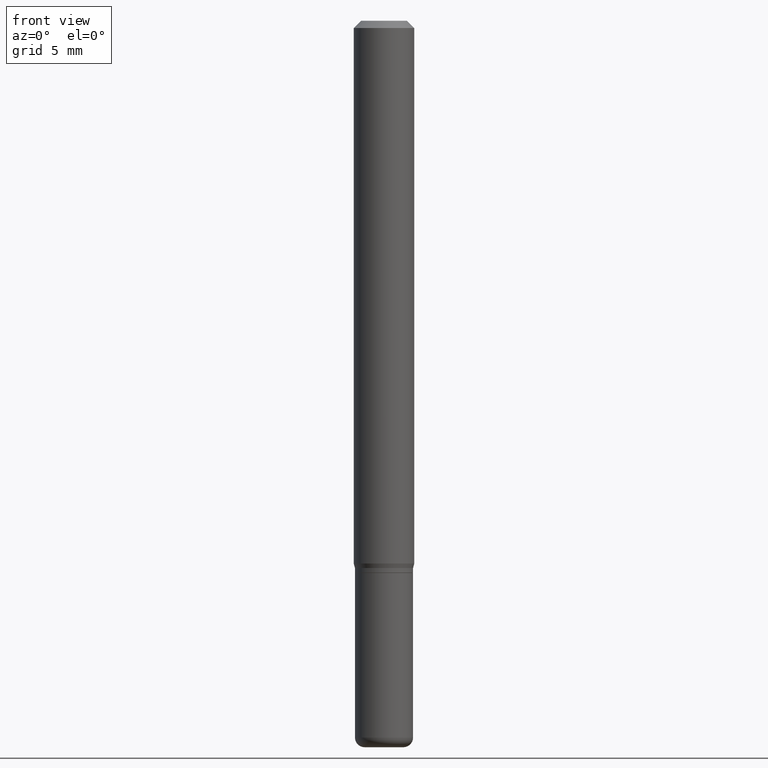
[diagram: clean part render]
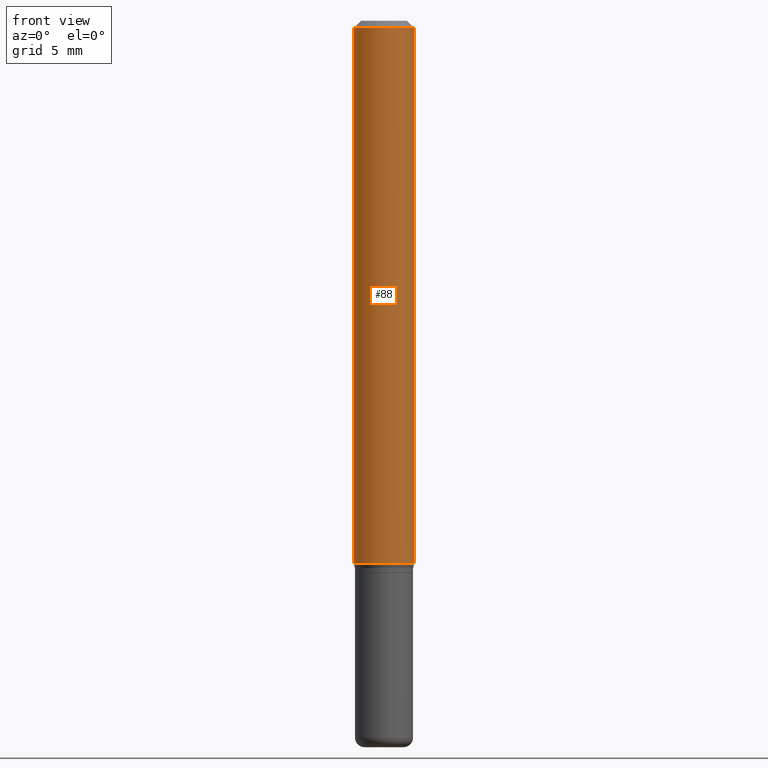
[diagram: same view with one face highlighted and labeled with its STEP entity id]
A machine part, front view. The second image highlights one B-rep face of the part: STEP entity #88.
In plain terms, the highlighted cylindrical surface (edge-blend (fillet) strip) has radius 1.5875 mm, axis along (-0, 0, 1).
Its self-contained STEP definition (entity closure, byte-faithful):
#5 = ORIENTED_EDGE ( 'NONE', *, *, #423, .F. ) ;
#6 = CIRCLE ( 'NONE', #293, 0.06250000000000000000 ) ;
#11 = DIRECTION ( 'NONE',  ( 1.000000000000000000, -6.982962677686266711E-15, 4.876176775795935793E-29 ) ) ;
#18 = EDGE_CURVE ( 'NONE', #112, #510, #447, .T. ) ;
#22 = DIRECTION ( 'NONE',  ( -2.445468806185136597E-29, 3.491481338843145583E-15, 1.000000000000000000 ) ) ;
#30 = ORIENTED_EDGE ( 'NONE', *, *, #166, .F. ) ;
#34 = VERTEX_POINT ( 'NONE', #490 ) ;
#40 = AXIS2_PLACEMENT_3D ( 'NONE', #128, #248, #11 ) ;
#65 = DIRECTION ( 'NONE',  ( 1.000000000000000000, -6.982962677686262766E-15, 0.000000000000000000 ) ) ;
#75 = VERTEX_POINT ( 'NONE', #93 ) ;
#88 = ADVANCED_FACE ( 'NONE', ( #206 ), #245, .T. ) ;
#93 = CARTESIAN_POINT ( 'NONE',  ( -0.06250000000000000000, -1.538495874449836183E-15, -0.01499999999999970281 ) ) ;
#110 = DIRECTION ( 'NONE',  ( -2.445468806185136877E-29, 3.491481338843145188E-15, 1.000000000000000000 ) ) ;
#112 = VERTEX_POINT ( 'NONE', #226 ) ;
#128 = CARTESIAN_POINT ( 'NONE',  ( 0.000000000000000000, 0.000000000000000000, 0.000000000000000000 ) ) ;
#129 = CARTESIAN_POINT ( 'NONE',  ( 0.06250000000000000000, -4.888073874380378612E-16, -0.01499999999999970281 ) ) ;
#140 = CIRCLE ( 'NONE', #155, 0.06250000000000000000 ) ;
#144 = ORIENTED_EDGE ( 'NONE', *, *, #242, .T. ) ;
#154 = VECTOR ( 'NONE', #110, 39.37007874015748143 ) ;
#155 = AXIS2_PLACEMENT_3D ( 'NONE', #390, #517, #158 ) ;
#158 = DIRECTION ( 'NONE',  ( 1.000000000000000000, -6.982962677686266711E-15, 0.000000000000000000 ) ) ;
#166 = EDGE_CURVE ( 'NONE', #34, #75, #176, .T. ) ;
#171 = VECTOR ( 'NONE', #217, 39.37007874015748143 ) ;
#176 = LINE ( 'NONE', #378, #154 ) ;
#206 = FACE_OUTER_BOUND ( 'NONE', #411, .T. ) ;
#212 = CARTESIAN_POINT ( 'NONE',  ( 0.06250000000000000000, -4.364351673553916694E-16, 3.047610484872459871E-30 ) ) ;
#217 = DIRECTION ( 'NONE',  ( -2.445468806185136877E-29, 3.491481338843145188E-15, 1.000000000000000000 ) ) ;
#226 = CARTESIAN_POINT ( 'NONE',  ( 0.06250000000000000000, -4.349233115872544161E-15, -1.120669872981078008 ) ) ;
#242 = EDGE_CURVE ( 'NONE', #34, #112, #6, .T. ) ;
#245 = CYLINDRICAL_SURFACE ( 'NONE', #40, 0.06250000000000000000 ) ;
#248 = DIRECTION ( 'NONE',  ( -2.445468806185136597E-29, 3.491481338843145583E-15, 1.000000000000000000 ) ) ;
#293 = AXIS2_PLACEMENT_3D ( 'NONE', #418, #22, #65 ) ;
#298 = ORIENTED_EDGE ( 'NONE', *, *, #18, .T. ) ;
#378 = CARTESIAN_POINT ( 'NONE',  ( -0.06250000000000000000, 4.440892098500626162E-16, -3.074334431409316114E-30 ) ) ;
#390 = CARTESIAN_POINT ( 'NONE',  ( 3.668203209277632395E-31, -5.237222008264614861E-17, -0.01499999999999970281 ) ) ;
#411 = EDGE_LOOP ( 'NONE', ( #30, #144, #298, #5 ) ) ;
#418 = CARTESIAN_POINT ( 'NONE',  ( 2.740563216406685153E-29, -3.912797948517151703E-15, -1.120669872981078008 ) ) ;
#423 = EDGE_CURVE ( 'NONE', #75, #510, #140, .T. ) ;
#447 = LINE ( 'NONE', #212, #171 ) ;
#490 = CARTESIAN_POINT ( 'NONE',  ( -0.06250000000000000000, -3.468708738667089875E-15, -1.120669872981078008 ) ) ;
#510 = VERTEX_POINT ( 'NONE', #129 ) ;
#517 = DIRECTION ( 'NONE',  ( -2.445468806185136597E-29, 3.491481338843145583E-15, 1.000000000000000000 ) ) ;